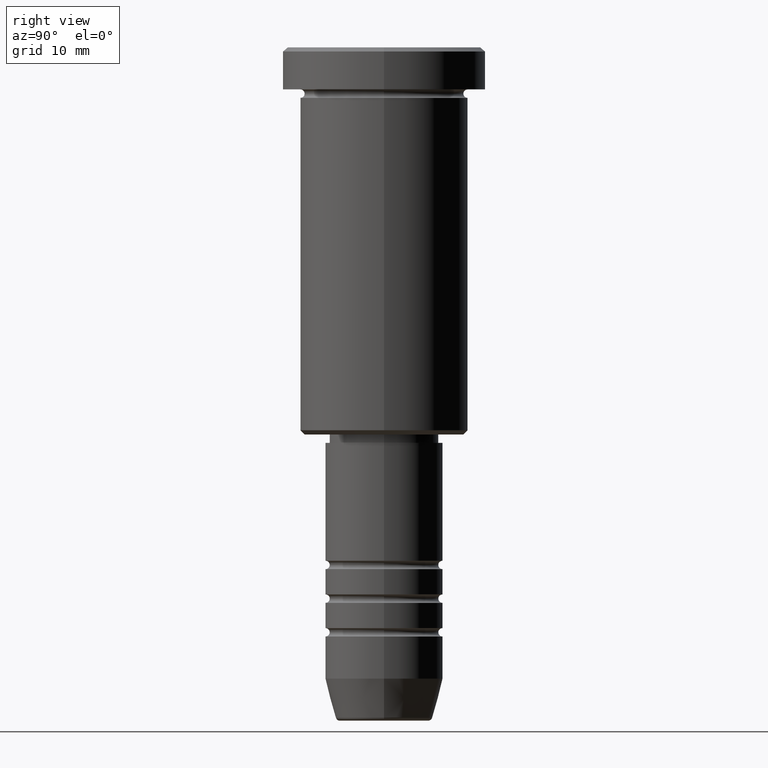
[diagram: clean part render]
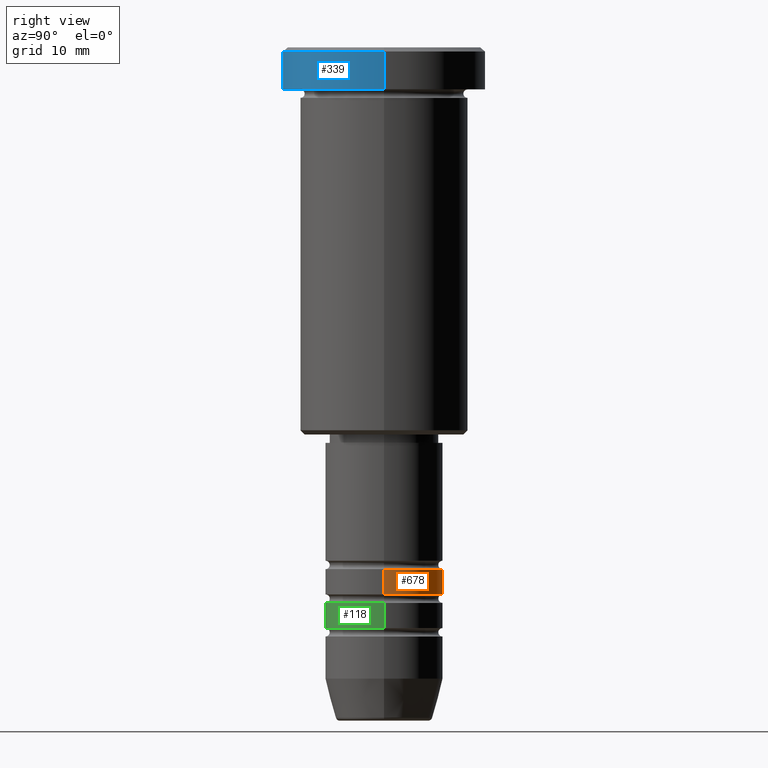
[diagram: same view with three faces highlighted in distinct colors, each labeled with its STEP entity id]
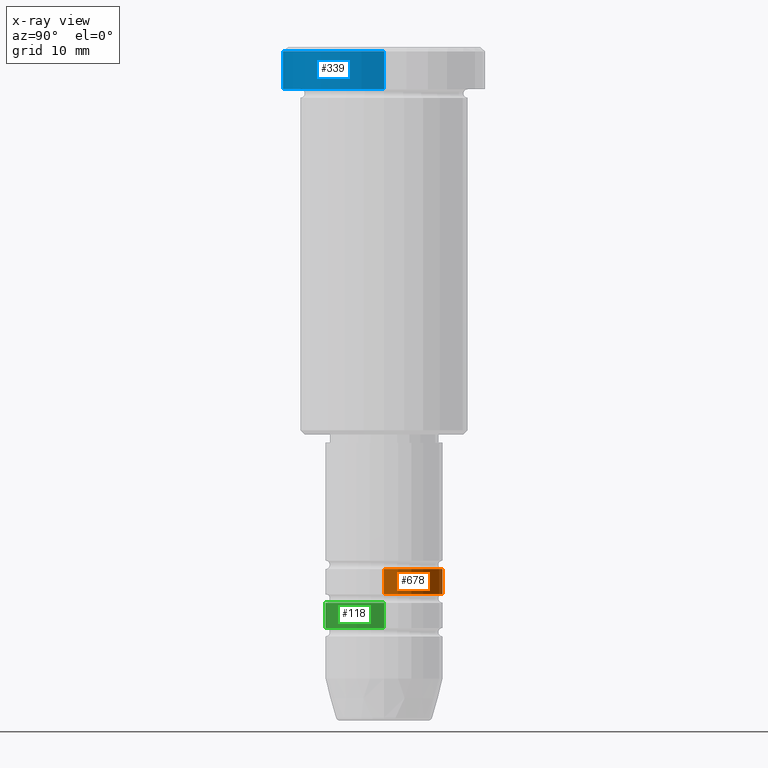
[diagram: x-ray of the same camera — body ghosted, the three highlighted faces saturated]
A machine part, right view with three faces highlighted in distinct colors.
The next image is the same camera in x-ray (body ghosted, the three faces saturated) — at least one of them is partly hidden behind the body in this view.
Their STEP definitions:

[orange] entity #678 — the highlighted cylindrical surface (partial cylindrical patch) has radius 7 mm, axis along (-0, -0, 1).
#11 = VERTEX_POINT ( 'NONE', #387 ) ;
#38 = VERTEX_POINT ( 'NONE', #1097 ) ;
#71 = FACE_OUTER_BOUND ( 'NONE', #177, .T. ) ;
#81 = DIRECTION ( 'NONE',  ( -0.000000000000000000, -0.000000000000000000, 1.000000000000000000 ) ) ;
#141 = CIRCLE ( 'NONE', #1077, 7.000000000000002665 ) ;
#155 = DIRECTION ( 'NONE',  ( -0.000000000000000000, -0.000000000000000000, 1.000000000000000000 ) ) ;
#161 = CYLINDRICAL_SURFACE ( 'NONE', #1172, 7.000000000000000888 ) ;
#172 = EDGE_CURVE ( 'NONE', #38, #11, #141, .T. ) ;
#175 = CARTESIAN_POINT ( 'NONE',  ( -7.000000000000000000, 8.572527594031473190E-16, -62.00000000000000711 ) ) ;
#177 = EDGE_LOOP ( 'NONE', ( #547, #305, #1018, #1174 ) ) ;
#193 = EDGE_CURVE ( 'NONE', #38, #668, #964, .T. ) ;
#289 = VERTEX_POINT ( 'NONE', #175 ) ;
#305 = ORIENTED_EDGE ( 'NONE', *, *, #784, .T. ) ;
#333 = AXIS2_PLACEMENT_3D ( 'NONE', #410, #778, #1051 ) ;
#342 = CARTESIAN_POINT ( 'NONE',  ( -7.000000000000000888, 8.572527594031474176E-16, 0.000000000000000000 ) ) ;
#387 = CARTESIAN_POINT ( 'NONE',  ( -7.000000000000002665, 8.572527594031475162E-16, -65.00000000000000000 ) ) ;
#410 = CARTESIAN_POINT ( 'NONE',  ( 0.000000000000000000, 0.000000000000000000, -62.00000000000000711 ) ) ;
#419 = CARTESIAN_POINT ( 'NONE',  ( 0.000000000000000000, 0.000000000000000000, 0.000000000000000000 ) ) ;
#430 = CARTESIAN_POINT ( 'NONE',  ( 0.000000000000000000, 0.000000000000000000, -65.00000000000000000 ) ) ;
#497 = CARTESIAN_POINT ( 'NONE',  ( 7.000000000000000888, 0.000000000000000000, 0.000000000000000000 ) ) ;
#547 = ORIENTED_EDGE ( 'NONE', *, *, #172, .T. ) ;
#668 = VERTEX_POINT ( 'NONE', #967 ) ;
#678 = ADVANCED_FACE ( 'NONE', ( #71 ), #161, .T. ) ;
#777 = DIRECTION ( 'NONE',  ( -0.000000000000000000, -0.000000000000000000, 1.000000000000000000 ) ) ;
#778 = DIRECTION ( 'NONE',  ( -0.000000000000000000, -0.000000000000000000, 1.000000000000000000 ) ) ;
#782 = DIRECTION ( 'NONE',  ( 1.000000000000000000, 0.000000000000000000, 0.000000000000000000 ) ) ;
#784 = EDGE_CURVE ( 'NONE', #11, #289, #1163, .T. ) ;
#883 = VECTOR ( 'NONE', #81, 1000.000000000000000 ) ;
#954 = VECTOR ( 'NONE', #1069, 1000.000000000000000 ) ;
#964 = LINE ( 'NONE', #497, #954 ) ;
#967 = CARTESIAN_POINT ( 'NONE',  ( 7.000000000000000000, 0.000000000000000000, -62.00000000000000711 ) ) ;
#1018 = ORIENTED_EDGE ( 'NONE', *, *, #1159, .F. ) ;
#1051 = DIRECTION ( 'NONE',  ( 1.000000000000000000, 0.000000000000000000, 0.000000000000000000 ) ) ;
#1069 = DIRECTION ( 'NONE',  ( -0.000000000000000000, -0.000000000000000000, 1.000000000000000000 ) ) ;
#1077 = AXIS2_PLACEMENT_3D ( 'NONE', #430, #777, #782 ) ;
#1083 = CIRCLE ( 'NONE', #333, 7.000000000000000000 ) ;
#1097 = CARTESIAN_POINT ( 'NONE',  ( 7.000000000000002665, 0.000000000000000000, -65.00000000000000000 ) ) ;
#1158 = DIRECTION ( 'NONE',  ( 1.000000000000000000, 0.000000000000000000, 0.000000000000000000 ) ) ;
#1159 = EDGE_CURVE ( 'NONE', #668, #289, #1083, .T. ) ;
#1163 = LINE ( 'NONE', #342, #883 ) ;
#1172 = AXIS2_PLACEMENT_3D ( 'NONE', #419, #155, #1158 ) ;
#1174 = ORIENTED_EDGE ( 'NONE', *, *, #193, .F. ) ;

[blue] entity #339 — the highlighted cylindrical surface (partial cylindrical patch) has radius 12 mm, axis along (-0, -0, 1).
#6 = AXIS2_PLACEMENT_3D ( 'NONE', #618, #280, #366 ) ;
#76 = ORIENTED_EDGE ( 'NONE', *, *, #926, .F. ) ;
#88 = DIRECTION ( 'NONE',  ( -0.000000000000000000, -0.000000000000000000, 1.000000000000000000 ) ) ;
#100 = AXIS2_PLACEMENT_3D ( 'NONE', #721, #174, #1007 ) ;
#121 = CIRCLE ( 'NONE', #6, 12.00000000000000000 ) ;
#139 = VERTEX_POINT ( 'NONE', #525 ) ;
#152 = CARTESIAN_POINT ( 'NONE',  ( -12.00000000000000000, 1.469576158976823947E-15, -0.4999999999999987232 ) ) ;
#174 = DIRECTION ( 'NONE',  ( -0.000000000000000000, -0.000000000000000000, 1.000000000000000000 ) ) ;
#211 = VERTEX_POINT ( 'NONE', #152 ) ;
#217 = DIRECTION ( 'NONE',  ( -0.000000000000000000, -0.000000000000000000, 1.000000000000000000 ) ) ;
#280 = DIRECTION ( 'NONE',  ( 0.000000000000000000, 0.000000000000000000, -1.000000000000000000 ) ) ;
#290 = DIRECTION ( 'NONE',  ( 1.000000000000000000, 0.000000000000000000, 0.000000000000000000 ) ) ;
#307 = EDGE_CURVE ( 'NONE', #1085, #211, #121, .T. ) ;
#339 = ADVANCED_FACE ( 'NONE', ( #1170 ), #1084, .T. ) ;
#366 = DIRECTION ( 'NONE',  ( 1.000000000000000000, 0.000000000000000000, 0.000000000000000000 ) ) ;
#464 = CIRCLE ( 'NONE', #922, 12.00000000000000000 ) ;
#469 = EDGE_CURVE ( 'NONE', #139, #1072, #464, .T. ) ;
#477 = LINE ( 'NONE', #1031, #979 ) ;
#525 = CARTESIAN_POINT ( 'NONE',  ( -12.00000000000000000, 1.469576158976823947E-15, -5.000000000000000000 ) ) ;
#533 = CARTESIAN_POINT ( 'NONE',  ( 12.00000000000000000, 0.000000000000000000, 0.000000000000000000 ) ) ;
#538 = ORIENTED_EDGE ( 'NONE', *, *, #847, .T. ) ;
#576 = DIRECTION ( 'NONE',  ( -0.000000000000000000, -0.000000000000000000, 1.000000000000000000 ) ) ;
#593 = CARTESIAN_POINT ( 'NONE',  ( 12.00000000000000000, 0.000000000000000000, -5.000000000000000000 ) ) ;
#610 = ORIENTED_EDGE ( 'NONE', *, *, #469, .T. ) ;
#618 = CARTESIAN_POINT ( 'NONE',  ( 0.000000000000000000, 0.000000000000000000, -0.4999999999999987232 ) ) ;
#721 = CARTESIAN_POINT ( 'NONE',  ( 0.000000000000000000, 0.000000000000000000, 0.000000000000000000 ) ) ;
#785 = CARTESIAN_POINT ( 'NONE',  ( 12.00000000000000000, 0.000000000000000000, -0.4999999999999987232 ) ) ;
#836 = CARTESIAN_POINT ( 'NONE',  ( 0.000000000000000000, 0.000000000000000000, -5.000000000000000000 ) ) ;
#847 = EDGE_CURVE ( 'NONE', #1072, #1085, #1175, .T. ) ;
#862 = VECTOR ( 'NONE', #88, 1000.000000000000000 ) ;
#922 = AXIS2_PLACEMENT_3D ( 'NONE', #836, #576, #290 ) ;
#926 = EDGE_CURVE ( 'NONE', #139, #211, #477, .T. ) ;
#979 = VECTOR ( 'NONE', #217, 1000.000000000000000 ) ;
#1006 = EDGE_LOOP ( 'NONE', ( #76, #610, #538, #1129 ) ) ;
#1007 = DIRECTION ( 'NONE',  ( 1.000000000000000000, 0.000000000000000000, 0.000000000000000000 ) ) ;
#1031 = CARTESIAN_POINT ( 'NONE',  ( -12.00000000000000000, 1.469576158976823947E-15, 0.000000000000000000 ) ) ;
#1072 = VERTEX_POINT ( 'NONE', #593 ) ;
#1084 = CYLINDRICAL_SURFACE ( 'NONE', #100, 12.00000000000000000 ) ;
#1085 = VERTEX_POINT ( 'NONE', #785 ) ;
#1129 = ORIENTED_EDGE ( 'NONE', *, *, #307, .T. ) ;
#1170 = FACE_OUTER_BOUND ( 'NONE', #1006, .T. ) ;
#1175 = LINE ( 'NONE', #533, #862 ) ;

[green] entity #118 — the highlighted cylindrical surface (partial cylindrical patch) has radius 7 mm, axis along (-0, -0, 1).
#61 = EDGE_CURVE ( 'NONE', #1136, #360, #463, .T. ) ;
#104 = CARTESIAN_POINT ( 'NONE',  ( 0.000000000000000000, 0.000000000000000000, -66.00000000000000000 ) ) ;
#118 = ADVANCED_FACE ( 'NONE', ( #467 ), #829, .T. ) ;
#192 = CARTESIAN_POINT ( 'NONE',  ( 7.000000000000000888, 0.000000000000000000, -69.00000000000000000 ) ) ;
#234 = CARTESIAN_POINT ( 'NONE',  ( 7.000000000000000000, 0.000000000000000000, -66.00000000000000000 ) ) ;
#244 = CARTESIAN_POINT ( 'NONE',  ( -7.000000000000000000, 8.572527594031473190E-16, -66.00000000000000000 ) ) ;
#316 = DIRECTION ( 'NONE',  ( -0.000000000000000000, -0.000000000000000000, 1.000000000000000000 ) ) ;
#354 = ORIENTED_EDGE ( 'NONE', *, *, #1008, .F. ) ;
#360 = VERTEX_POINT ( 'NONE', #192 ) ;
#376 = CARTESIAN_POINT ( 'NONE',  ( 0.000000000000000000, 0.000000000000000000, 0.000000000000000000 ) ) ;
#400 = AXIS2_PLACEMENT_3D ( 'NONE', #569, #316, #476 ) ;
#405 = CARTESIAN_POINT ( 'NONE',  ( 7.000000000000000888, 0.000000000000000000, 0.000000000000000000 ) ) ;
#418 = EDGE_LOOP ( 'NONE', ( #764, #1182, #485, #354 ) ) ;
#463 = CIRCLE ( 'NONE', #400, 7.000000000000000888 ) ;
#467 = FACE_OUTER_BOUND ( 'NONE', #418, .T. ) ;
#476 = DIRECTION ( 'NONE',  ( 1.000000000000000000, 0.000000000000000000, 0.000000000000000000 ) ) ;
#485 = ORIENTED_EDGE ( 'NONE', *, *, #611, .T. ) ;
#569 = CARTESIAN_POINT ( 'NONE',  ( 0.000000000000000000, 0.000000000000000000, -69.00000000000000000 ) ) ;
#607 = LINE ( 'NONE', #1065, #732 ) ;
#611 = EDGE_CURVE ( 'NONE', #360, #1025, #866, .T. ) ;
#662 = VERTEX_POINT ( 'NONE', #244 ) ;
#672 = VECTOR ( 'NONE', #1048, 1000.000000000000000 ) ;
#673 = CIRCLE ( 'NONE', #692, 7.000000000000000000 ) ;
#692 = AXIS2_PLACEMENT_3D ( 'NONE', #104, #734, #1015 ) ;
#732 = VECTOR ( 'NONE', #965, 1000.000000000000000 ) ;
#734 = DIRECTION ( 'NONE',  ( -0.000000000000000000, -0.000000000000000000, 1.000000000000000000 ) ) ;
#738 = DIRECTION ( 'NONE',  ( -0.000000000000000000, -0.000000000000000000, 1.000000000000000000 ) ) ;
#763 = AXIS2_PLACEMENT_3D ( 'NONE', #376, #738, #1108 ) ;
#764 = ORIENTED_EDGE ( 'NONE', *, *, #1035, .F. ) ;
#829 = CYLINDRICAL_SURFACE ( 'NONE', #763, 7.000000000000000888 ) ;
#866 = LINE ( 'NONE', #405, #672 ) ;
#959 = CARTESIAN_POINT ( 'NONE',  ( -7.000000000000000888, 8.572527594031474176E-16, -69.00000000000000000 ) ) ;
#965 = DIRECTION ( 'NONE',  ( -0.000000000000000000, -0.000000000000000000, 1.000000000000000000 ) ) ;
#1008 = EDGE_CURVE ( 'NONE', #662, #1025, #673, .T. ) ;
#1015 = DIRECTION ( 'NONE',  ( 1.000000000000000000, 0.000000000000000000, 0.000000000000000000 ) ) ;
#1025 = VERTEX_POINT ( 'NONE', #234 ) ;
#1035 = EDGE_CURVE ( 'NONE', #1136, #662, #607, .T. ) ;
#1048 = DIRECTION ( 'NONE',  ( -0.000000000000000000, -0.000000000000000000, 1.000000000000000000 ) ) ;
#1065 = CARTESIAN_POINT ( 'NONE',  ( -7.000000000000000888, 8.572527594031474176E-16, 0.000000000000000000 ) ) ;
#1108 = DIRECTION ( 'NONE',  ( 1.000000000000000000, 0.000000000000000000, 0.000000000000000000 ) ) ;
#1136 = VERTEX_POINT ( 'NONE', #959 ) ;
#1182 = ORIENTED_EDGE ( 'NONE', *, *, #61, .T. ) ;